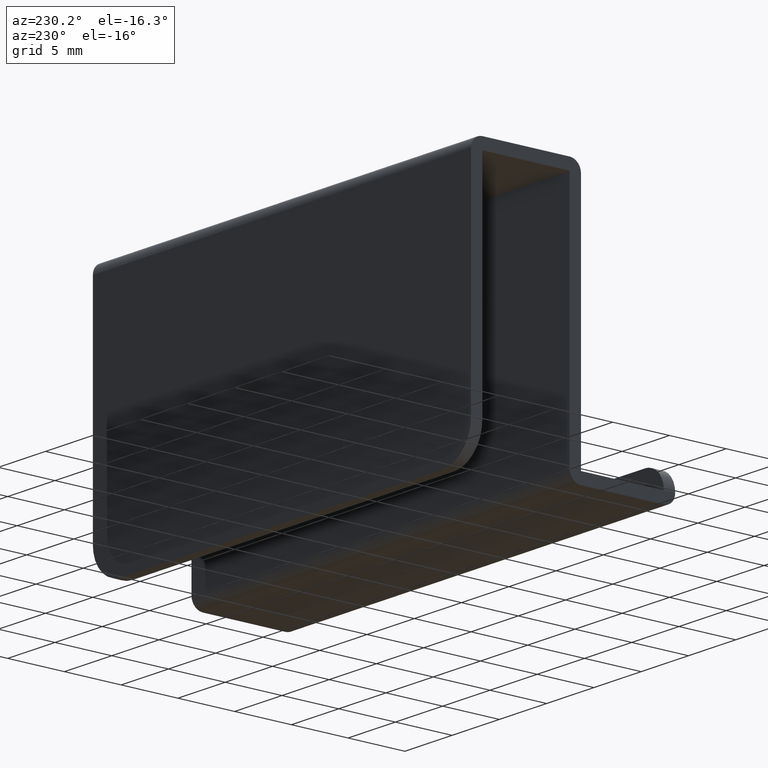
[diagram: clean part render]
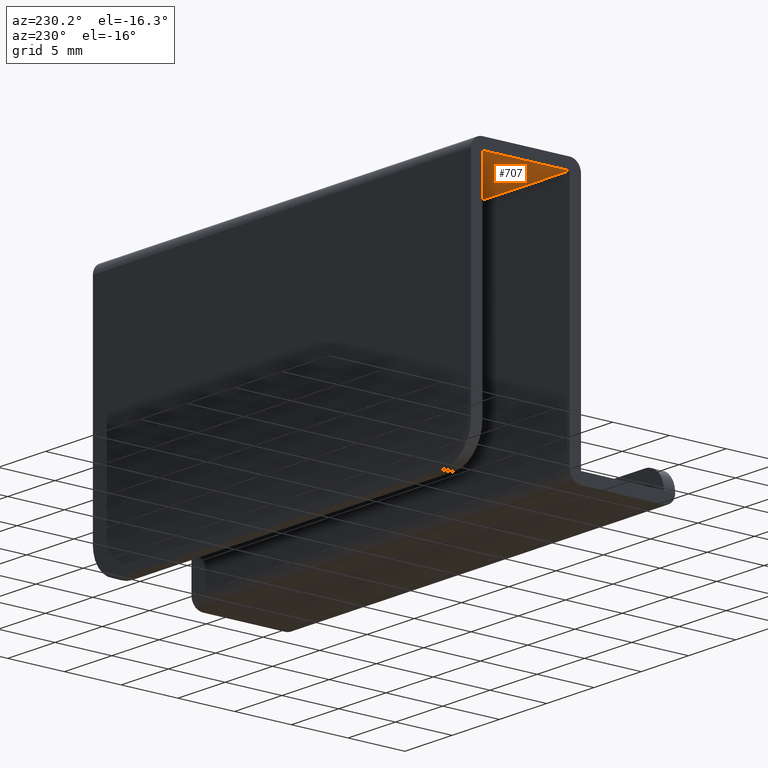
[diagram: same view with one face highlighted and labeled with its STEP entity id]
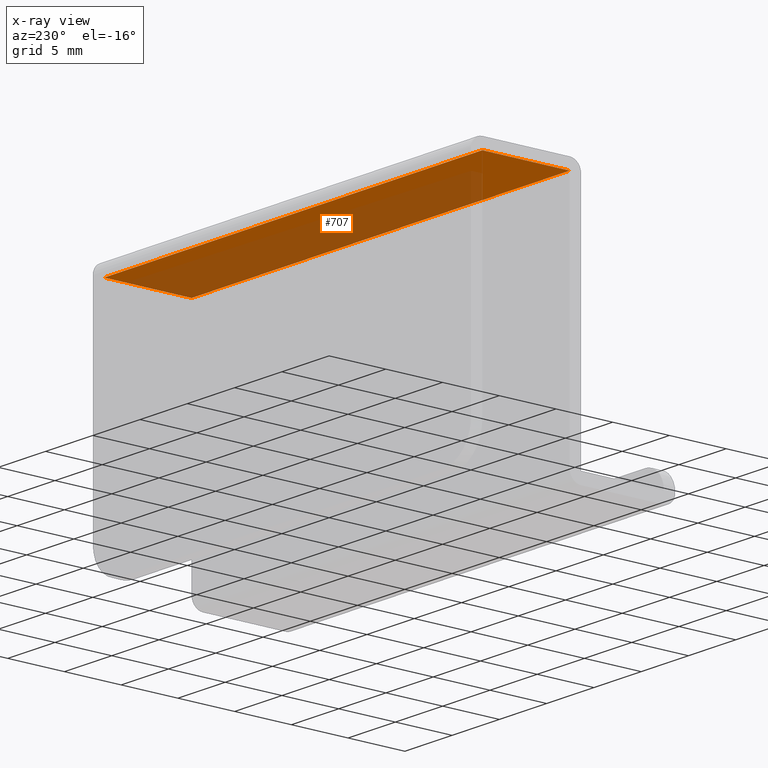
[diagram: x-ray of the same camera — body ghosted, the highlighted face saturated]
A machine part, auxiliary view. The second image highlights one B-rep face of the part: STEP entity #707.
The next image is the same camera in x-ray: the body ghosted, the highlighted face saturated — about 60% of this face is hidden behind the body in this view.
In plain terms, the highlighted face is a freeform B-spline surface patch.
Its self-contained STEP definition (entity closure, byte-faithful):
#560=CARTESIAN_POINT('',(-20.0,-1.0,22.0));
#561=VERTEX_POINT('',#560);
#567=CARTESIAN_POINT('',(-20.0,-8.700011999999999,22.0));
#568=VERTEX_POINT('',#567);
#569=CARTESIAN_POINT('',(-20.0,-1.0,22.0));
#570=CARTESIAN_POINT('',(-20.0,-8.700011999999999,22.0));
#571=QUASI_UNIFORM_CURVE('',1,(#569,#570),.UNSPECIFIED.,.F.,.U.);
#572=EDGE_CURVE('',#561,#568,#571,.T.);
#608=CARTESIAN_POINT('',(20.0,-8.700011999999999,22.0));
#609=VERTEX_POINT('',#608);
#615=CARTESIAN_POINT('',(20.0,-1.0,22.0));
#616=VERTEX_POINT('',#615);
#617=CARTESIAN_POINT('',(20.0,-1.0,22.0));
#618=CARTESIAN_POINT('',(20.0,-8.700011999999999,22.0));
#619=QUASI_UNIFORM_CURVE('',1,(#617,#618),.UNSPECIFIED.,.F.,.U.);
#620=EDGE_CURVE('',#616,#609,#619,.T.);
#684=CARTESIAN_POINT('',(20.0,-8.700011999999999,22.0));
#685=CARTESIAN_POINT('',(-20.0,-8.700011999999999,22.0));
#686=QUASI_UNIFORM_CURVE('',1,(#684,#685),.UNSPECIFIED.,.F.,.U.);
#687=EDGE_CURVE('',#609,#568,#686,.T.);
#692=CARTESIAN_POINT('',(21.997999922472239,-9.084627801322490,22.0));
#693=CARTESIAN_POINT('',(-21.998000995355849,-9.084627801322490,22.0));
#694=CARTESIAN_POINT('',(21.997999922472239,-0.615384198677507,22.0));
#695=CARTESIAN_POINT('',(-21.998000995355849,-0.615384198677507,22.0));
#696=B_SPLINE_SURFACE_WITH_KNOTS('',1,1,((#692,#694),(#693,#695)),.UNSPECIFIED.,.F.,.F.,.U.,(2,2),(2,2),(0.0,43.996000917828077),(0.0,8.469243602644983),.UNSPECIFIED.);
#697=ORIENTED_EDGE('',*,*,#572,.F.);
#698=CARTESIAN_POINT('',(20.0,-1.0,22.0));
#699=CARTESIAN_POINT('',(-20.0,-1.0,22.0));
#700=QUASI_UNIFORM_CURVE('',1,(#698,#699),.UNSPECIFIED.,.F.,.U.);
#701=EDGE_CURVE('',#616,#561,#700,.T.);
#702=ORIENTED_EDGE('',*,*,#701,.F.);
#703=ORIENTED_EDGE('',*,*,#620,.T.);
#704=ORIENTED_EDGE('',*,*,#687,.T.);
#705=EDGE_LOOP('',(#697,#702,#703,#704));
#706=FACE_OUTER_BOUND('',#705,.T.);
#707=ADVANCED_FACE('',(#706),#696,.T.);